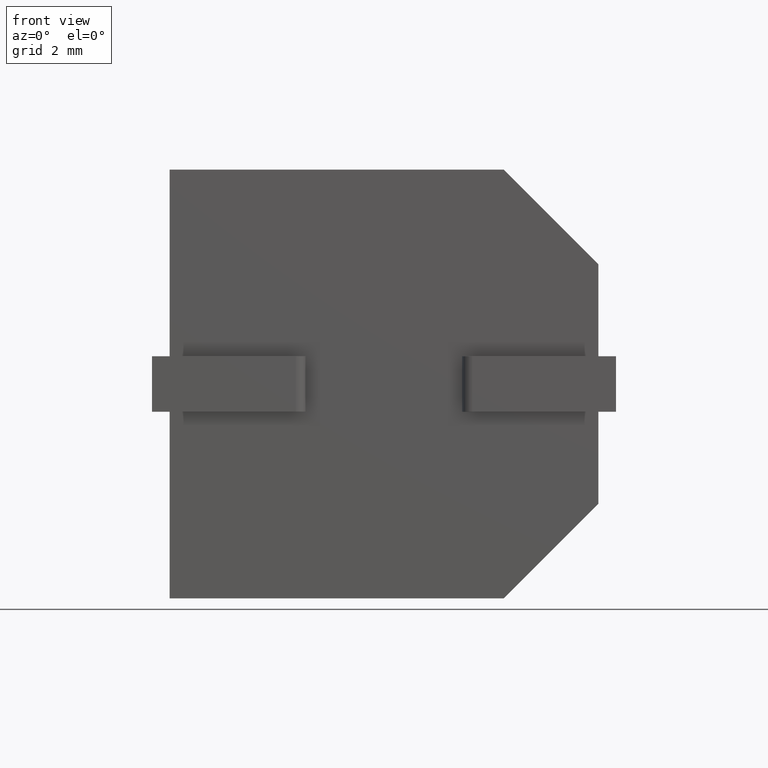
[diagram: clean part render]
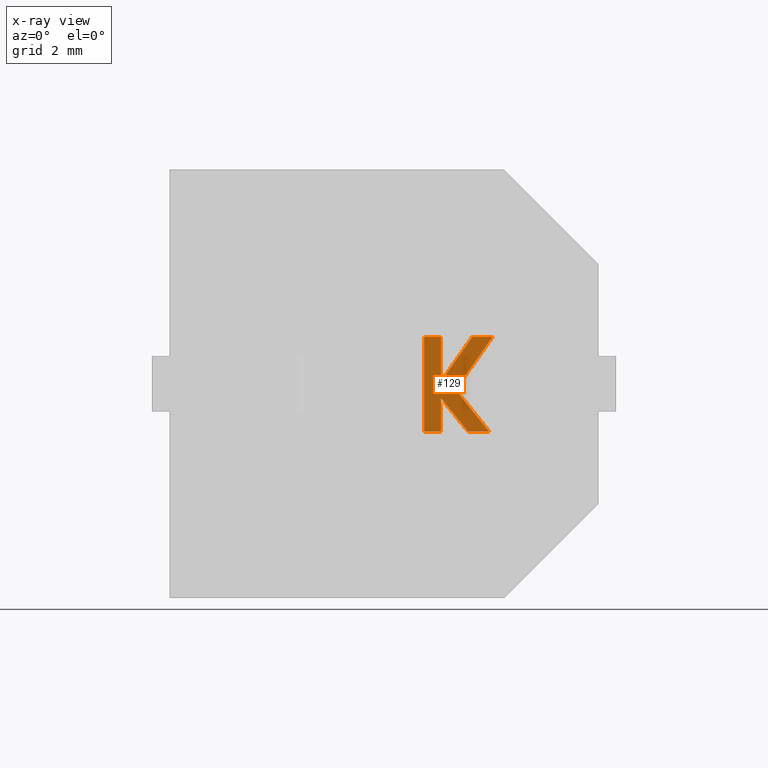
[diagram: x-ray — body ghosted, one internal face saturated and labeled with its STEP entity id]
A machine part, front view, then the same camera in x-ray: the body is ghosted and one INTERNAL B-rep face — a face not visible from any outside direction — is saturated and labeled: STEP entity #129.
In plain terms, the highlighted planar face has unit normal (0, -1, 0).
Its self-contained STEP definition (entity closure, byte-faithful):
#25 = LINE ( 'NONE', #1709, #3289 ) ;
#64 = EDGE_CURVE ( 'NONE', #2415, #1886, #1658, .T. ) ;
#96 = DIRECTION ( 'NONE',  ( 1.000000000000000000, 0.0000000000000000000, 0.0000000000000000000 ) ) ;
#129 = ADVANCED_FACE ( 'NONE', ( #2875 ), #2962, .T. ) ;
#148 = CARTESIAN_POINT ( 'NONE',  ( 5.381079547306396400, 7.099999999999999600, -3.319363575886128200 ) ) ;
#177 = VECTOR ( 'NONE', #2573, 1000.000000000000000 ) ;
#195 = VERTEX_POINT ( 'NONE', #702 ) ;
#234 = VERTEX_POINT ( 'NONE', #3318 ) ;
#243 = EDGE_CURVE ( 'NONE', #3397, #770, #2628, .T. ) ;
#348 = ORIENTED_EDGE ( 'NONE', *, *, #3127, .F. ) ;
#356 = ORIENTED_EDGE ( 'NONE', *, *, #64, .F. ) ;
#366 = VERTEX_POINT ( 'NONE', #2870 ) ;
#485 = CARTESIAN_POINT ( 'NONE',  ( 5.997442092279873000, 7.099999999999999600, -3.319363575886130800 ) ) ;
#528 = VERTEX_POINT ( 'NONE', #683 ) ;
#605 = VECTOR ( 'NONE', #1308, 1000.000000000000000 ) ;
#683 = CARTESIAN_POINT ( 'NONE',  ( 5.381079547306393700, 7.099999999999999600, -5.194358658074004400 ) ) ;
#702 = CARTESIAN_POINT ( 'NONE',  ( 5.997442092279873000, 7.099999999999999600, -3.319363575886130800 ) ) ;
#770 = VERTEX_POINT ( 'NONE', #1223 ) ;
#788 = ORIENTED_EDGE ( 'NONE', *, *, #3173, .F. ) ;
#811 = ORIENTED_EDGE ( 'NONE', *, *, #2157, .F. ) ;
#817 = VERTEX_POINT ( 'NONE', #2800 ) ;
#820 = CARTESIAN_POINT ( 'NONE',  ( 5.381079547306393700, 7.099999999999999600, -4.535198855793510100 ) ) ;
#854 = DIRECTION ( 'NONE',  ( 0.6274016762861017700, 0.0000000000000000000, -0.7786957920737659400 ) ) ;
#868 = VERTEX_POINT ( 'NONE', #1087 ) ;
#875 = LINE ( 'NONE', #148, #1569 ) ;
#1059 = DIRECTION ( 'NONE',  ( -0.6279378741829139100, 0.0000000000000000000, 0.7782634683490179400 ) ) ;
#1087 = CARTESIAN_POINT ( 'NONE',  ( 5.381079547306393700, 7.099999999999999600, -4.535198855793510100 ) ) ;
#1130 = VECTOR ( 'NONE', #2821, 1000.000000000000000 ) ;
#1138 = VECTOR ( 'NONE', #3136, 1000.000000000000000 ) ;
#1148 = VERTEX_POINT ( 'NONE', #1192 ) ;
#1155 = CARTESIAN_POINT ( 'NONE',  ( 5.044508229166684300, 7.099999999999999600, -3.319363575886128200 ) ) ;
#1192 = CARTESIAN_POINT ( 'NONE',  ( 6.402706152770193200, 7.099999999999999600, -3.319363575886130800 ) ) ;
#1210 = EDGE_CURVE ( 'NONE', #528, #2415, #1311, .T. ) ;
#1223 = CARTESIAN_POINT ( 'NONE',  ( 5.912919214105404100, 7.099999999999999600, -5.194358624149853800 ) ) ;
#1276 = VECTOR ( 'NONE', #854, 1000.000000000000000 ) ;
#1300 = ORIENTED_EDGE ( 'NONE', *, *, #1210, .F. ) ;
#1308 = DIRECTION ( 'NONE',  ( -1.000000000000000000, 0.0000000000000000000, 0.0000000000000000000 ) ) ;
#1310 = ORIENTED_EDGE ( 'NONE', *, *, #2268, .F. ) ;
#1311 = LINE ( 'NONE', #2839, #605 ) ;
#1378 = EDGE_CURVE ( 'NONE', #770, #868, #2479, .T. ) ;
#1415 = LINE ( 'NONE', #1947, #2623 ) ;
#1434 = DIRECTION ( 'NONE',  ( 0.0000000000000000000, 0.0000000000000000000, 1.000000000000000000 ) ) ;
#1521 = DIRECTION ( 'NONE',  ( -0.5740940732108399400, 0.0000000000000000000, -0.8187893472097611500 ) ) ;
#1560 = ORIENTED_EDGE ( 'NONE', *, *, #243, .F. ) ;
#1569 = VECTOR ( 'NONE', #96, 1000.000000000000000 ) ;
#1658 = LINE ( 'NONE', #1155, #2464 ) ;
#1709 = CARTESIAN_POINT ( 'NONE',  ( 6.402706152770193200, 7.099999999999999600, -3.319363575886130800 ) ) ;
#1755 = LINE ( 'NONE', #2096, #1138 ) ;
#1886 = VERTEX_POINT ( 'NONE', #2521 ) ;
#1934 = DIRECTION ( 'NONE',  ( 0.0000000000000000000, 0.0000000000000000000, -1.000000000000000000 ) ) ;
#1947 = CARTESIAN_POINT ( 'NONE',  ( 5.381079547306393700, 7.099999999999999600, -5.194358658074004400 ) ) ;
#1967 = EDGE_CURVE ( 'NONE', #234, #817, #1755, .T. ) ;
#1989 = DIRECTION ( 'NONE',  ( 1.000000000000000000, 0.0000000000000000000, 0.0000000000000000000 ) ) ;
#2024 = CARTESIAN_POINT ( 'NONE',  ( 6.337724959187636600, 7.099999999999999600, -5.194358624149853800 ) ) ;
#2096 = CARTESIAN_POINT ( 'NONE',  ( 5.381079547306396400, 7.099999999999999600, -4.198631054429681000 ) ) ;
#2157 = EDGE_CURVE ( 'NONE', #868, #528, #1415, .T. ) ;
#2192 = ORIENTED_EDGE ( 'NONE', *, *, #2659, .F. ) ;
#2224 = CARTESIAN_POINT ( 'NONE',  ( 0.4853262552323130400, 7.099999999999999600, -0.02186394466922349200 ) ) ;
#2268 = EDGE_CURVE ( 'NONE', #817, #195, #2787, .T. ) ;
#2279 = AXIS2_PLACEMENT_3D ( 'NONE', #2224, #3256, #1934 ) ;
#2344 = LINE ( 'NONE', #3184, #2421 ) ;
#2407 = CARTESIAN_POINT ( 'NONE',  ( 6.337724959187636600, 7.099999999999999600, -5.194358624149853800 ) ) ;
#2410 = EDGE_LOOP ( 'NONE', ( #356, #1300, #811, #2823, #1560, #348, #2192, #3107, #1310, #3067, #788 ) ) ;
#2415 = VERTEX_POINT ( 'NONE', #3080 ) ;
#2421 = VECTOR ( 'NONE', #1521, 1000.000000000000000 ) ;
#2464 = VECTOR ( 'NONE', #1434, 1000.000000000000000 ) ;
#2479 = LINE ( 'NONE', #820, #3106 ) ;
#2521 = CARTESIAN_POINT ( 'NONE',  ( 5.044508229166684300, 7.099999999999999600, -3.319363575886128200 ) ) ;
#2573 = DIRECTION ( 'NONE',  ( -1.000000000000000000, 0.0000000000000000000, 0.0000000000000000000 ) ) ;
#2623 = VECTOR ( 'NONE', #2724, 1000.000000000000000 ) ;
#2628 = LINE ( 'NONE', #3366, #177 ) ;
#2659 = EDGE_CURVE ( 'NONE', #1148, #366, #2344, .T. ) ;
#2724 = DIRECTION ( 'NONE',  ( 0.0000000000000000000, 0.0000000000000000000, -1.000000000000000000 ) ) ;
#2787 = LINE ( 'NONE', #485, #1130 ) ;
#2800 = CARTESIAN_POINT ( 'NONE',  ( 5.381079547306396400, 7.099999999999999600, -4.198631054429681000 ) ) ;
#2821 = DIRECTION ( 'NONE',  ( 0.5740093059051177800, 0.0000000000000000000, 0.8188487752536025600 ) ) ;
#2823 = ORIENTED_EDGE ( 'NONE', *, *, #1378, .F. ) ;
#2839 = CARTESIAN_POINT ( 'NONE',  ( 5.044508229166684300, 7.099999999999999600, -5.194358658074004400 ) ) ;
#2870 = CARTESIAN_POINT ( 'NONE',  ( 5.669532934686574600, 7.099999999999999600, -4.365036138344194700 ) ) ;
#2875 = FACE_OUTER_BOUND ( 'NONE', #2410, .T. ) ;
#2962 = PLANE ( 'NONE',  #2279 ) ;
#3035 = LINE ( 'NONE', #2407, #1276 ) ;
#3067 = ORIENTED_EDGE ( 'NONE', *, *, #1967, .F. ) ;
#3080 = CARTESIAN_POINT ( 'NONE',  ( 5.044508229166684300, 7.099999999999999600, -5.194358658074004400 ) ) ;
#3106 = VECTOR ( 'NONE', #1059, 1000.000000000000100 ) ;
#3107 = ORIENTED_EDGE ( 'NONE', *, *, #3224, .F. ) ;
#3127 = EDGE_CURVE ( 'NONE', #366, #3397, #3035, .T. ) ;
#3136 = DIRECTION ( 'NONE',  ( 0.0000000000000000000, 0.0000000000000000000, -1.000000000000000000 ) ) ;
#3173 = EDGE_CURVE ( 'NONE', #1886, #234, #875, .T. ) ;
#3184 = CARTESIAN_POINT ( 'NONE',  ( 5.669532934686574600, 7.099999999999999600, -4.365036138344194700 ) ) ;
#3224 = EDGE_CURVE ( 'NONE', #195, #1148, #25, .T. ) ;
#3256 = DIRECTION ( 'NONE',  ( 0.0000000000000000000, -1.000000000000000000, 0.0000000000000000000 ) ) ;
#3289 = VECTOR ( 'NONE', #1989, 1000.000000000000000 ) ;
#3318 = CARTESIAN_POINT ( 'NONE',  ( 5.381079547306396400, 7.099999999999999600, -3.319363575886128200 ) ) ;
#3366 = CARTESIAN_POINT ( 'NONE',  ( 5.912919214105404100, 7.099999999999999600, -5.194358624149853800 ) ) ;
#3397 = VERTEX_POINT ( 'NONE', #2024 ) ;